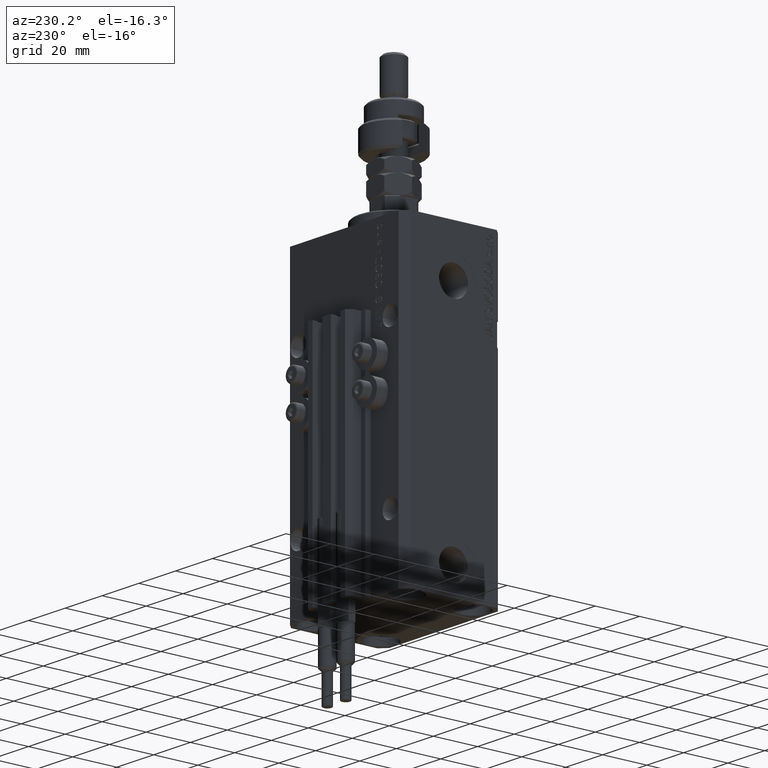
[diagram: clean part render]
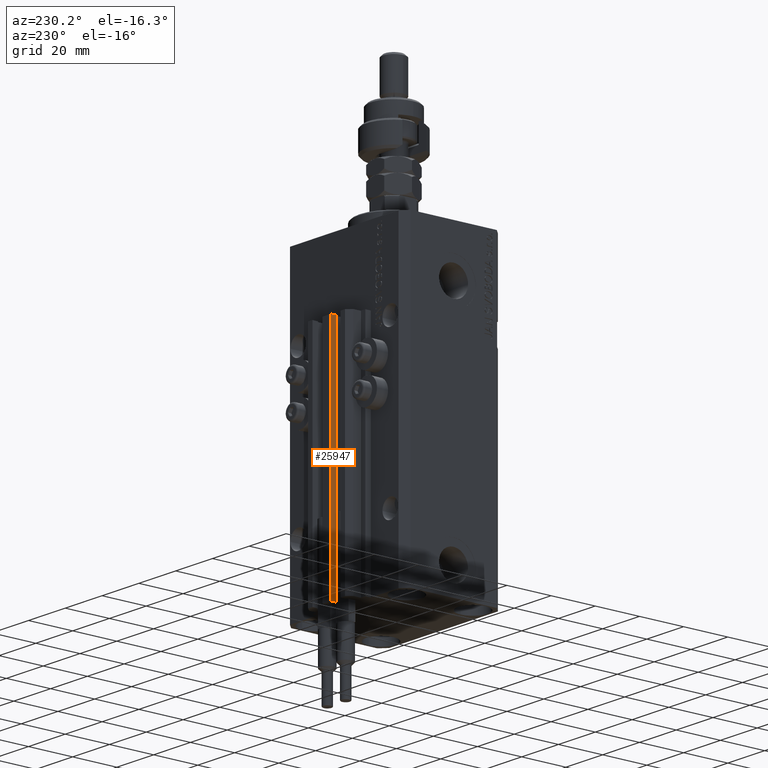
[diagram: same view with one face highlighted and labeled with its STEP entity id]
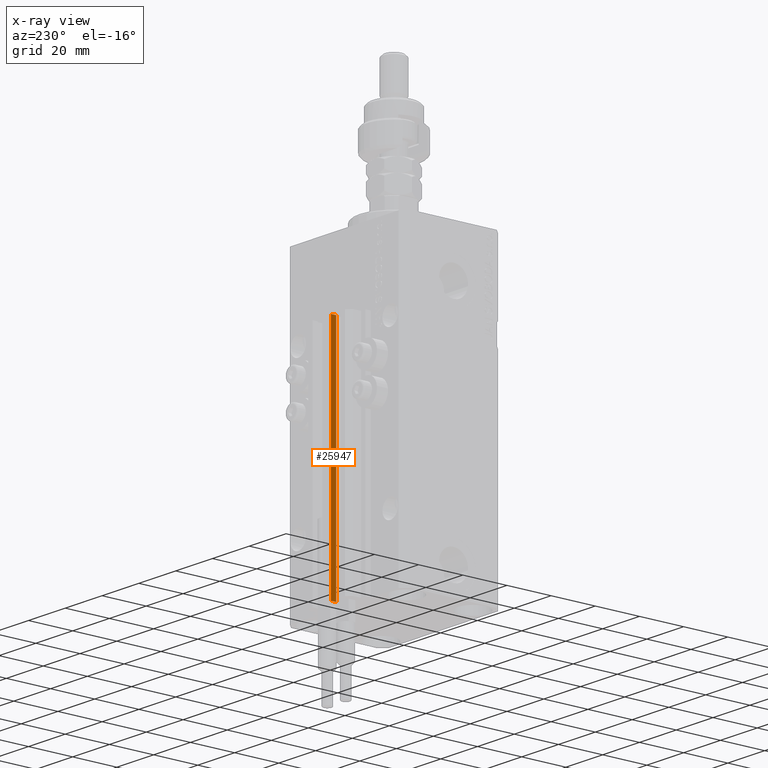
[diagram: x-ray of the same camera — body ghosted, the highlighted face saturated]
A machine part, auxiliary view. The second image highlights one B-rep face of the part: STEP entity #25947.
The next image is the same camera in x-ray: the body ghosted, the highlighted face saturated — about 0% of this face is hidden behind the body in this view.
In plain terms, the highlighted planar face has unit normal (-1, 0, 0).
Its self-contained STEP definition (entity closure, byte-faithful):
#464 = DIRECTION ( 'NONE',  ( -1.000000000000000000, 0.000000000000000000, 0.000000000000000000 ) ) ;
#1550 = DIRECTION ( 'NONE',  ( 0.000000000000000000, 0.000000000000000000, 1.000000000000000000 ) ) ;
#1901 = CARTESIAN_POINT ( 'NONE',  ( -2.350000000000003197, 28.09999999999950049, -137.0000000000000000 ) ) ;
#2144 = DIRECTION ( 'NONE',  ( 0.000000000000000000, 0.000000000000000000, 1.000000000000000000 ) ) ;
#2958 = ORIENTED_EDGE ( 'NONE', *, *, #33977, .F. ) ;
#4146 = CARTESIAN_POINT ( 'NONE',  ( -2.350000000000003197, 30.49999999999949907, -33.00000000000000000 ) ) ;
#5612 = VERTEX_POINT ( 'NONE', #4146 ) ;
#5782 = DIRECTION ( 'NONE',  ( 0.000000000000000000, -1.000000000000000000, 0.000000000000000000 ) ) ;
#5836 = VECTOR ( 'NONE', #5782, 1000.000000000000000 ) ;
#6128 = LINE ( 'NONE', #9279, #28130 ) ;
#8006 = PLANE ( 'NONE',  #8765 ) ;
#8765 = AXIS2_PLACEMENT_3D ( 'NONE', #35001, #464, #11389 ) ;
#8835 = VECTOR ( 'NONE', #1550, 1000.000000000000000 ) ;
#9279 = CARTESIAN_POINT ( 'NONE',  ( -2.350000000000003197, 30.49999999999949907, -33.00000000000000000 ) ) ;
#10891 = VERTEX_POINT ( 'NONE', #51111 ) ;
#11389 = DIRECTION ( 'NONE',  ( 0.000000000000000000, 0.000000000000000000, 1.000000000000000000 ) ) ;
#14310 = EDGE_CURVE ( 'NONE', #10891, #27439, #49622, .T. ) ;
#15463 = EDGE_CURVE ( 'NONE', #27439, #26492, #37457, .T. ) ;
#18248 = VECTOR ( 'NONE', #2144, 1000.000000000000000 ) ;
#25947 = ADVANCED_FACE ( 'NONE', ( #35255 ), #8006, .T. ) ;
#26492 = VERTEX_POINT ( 'NONE', #31547 ) ;
#26830 = EDGE_CURVE ( 'NONE', #10891, #5612, #44632, .T. ) ;
#27439 = VERTEX_POINT ( 'NONE', #42217 ) ;
#28130 = VECTOR ( 'NONE', #41162, 1000.000000000000000 ) ;
#30508 = ORIENTED_EDGE ( 'NONE', *, *, #14310, .T. ) ;
#31547 = CARTESIAN_POINT ( 'NONE',  ( -2.350000000000003197, 28.09999999999950049, -33.00000000000000000 ) ) ;
#32564 = EDGE_LOOP ( 'NONE', ( #2958, #50271, #30508, #46300 ) ) ;
#33977 = EDGE_CURVE ( 'NONE', #5612, #26492, #6128, .T. ) ;
#35001 = CARTESIAN_POINT ( 'NONE',  ( -2.350000000000003197, 30.49999999999949907, -137.0000000000000000 ) ) ;
#35255 = FACE_OUTER_BOUND ( 'NONE', #32564, .T. ) ;
#37107 = CARTESIAN_POINT ( 'NONE',  ( -2.350000000000003197, 30.49999999999949907, -137.0000000000000000 ) ) ;
#37457 = LINE ( 'NONE', #1901, #18248 ) ;
#38208 = CARTESIAN_POINT ( 'NONE',  ( -2.350000000000003197, 30.49999999999949907, -137.0000000000000000 ) ) ;
#41162 = DIRECTION ( 'NONE',  ( 0.000000000000000000, -1.000000000000000000, 0.000000000000000000 ) ) ;
#42217 = CARTESIAN_POINT ( 'NONE',  ( -2.350000000000003197, 28.09999999999950049, -137.0000000000000000 ) ) ;
#44632 = LINE ( 'NONE', #37107, #8835 ) ;
#46300 = ORIENTED_EDGE ( 'NONE', *, *, #15463, .T. ) ;
#49622 = LINE ( 'NONE', #38208, #5836 ) ;
#50271 = ORIENTED_EDGE ( 'NONE', *, *, #26830, .F. ) ;
#51111 = CARTESIAN_POINT ( 'NONE',  ( -2.350000000000003197, 30.49999999999949907, -137.0000000000000000 ) ) ;